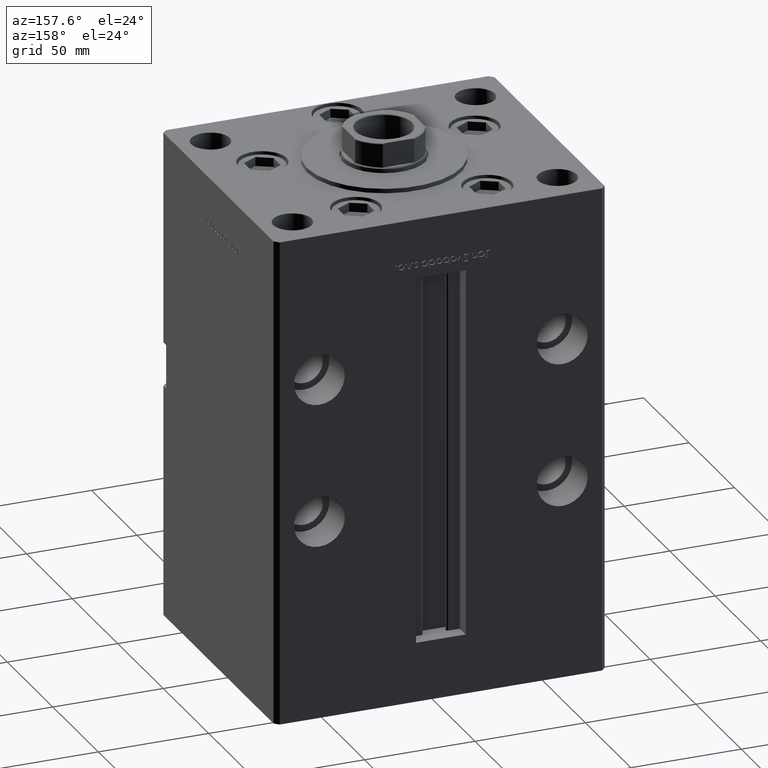
[diagram: clean part render]
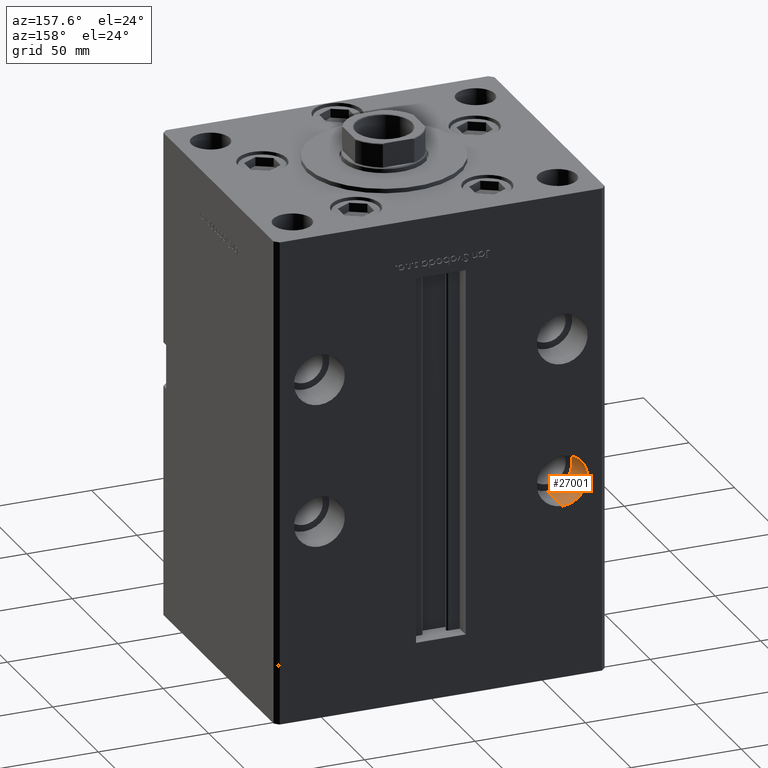
[diagram: same view with one face highlighted and labeled with its STEP entity id]
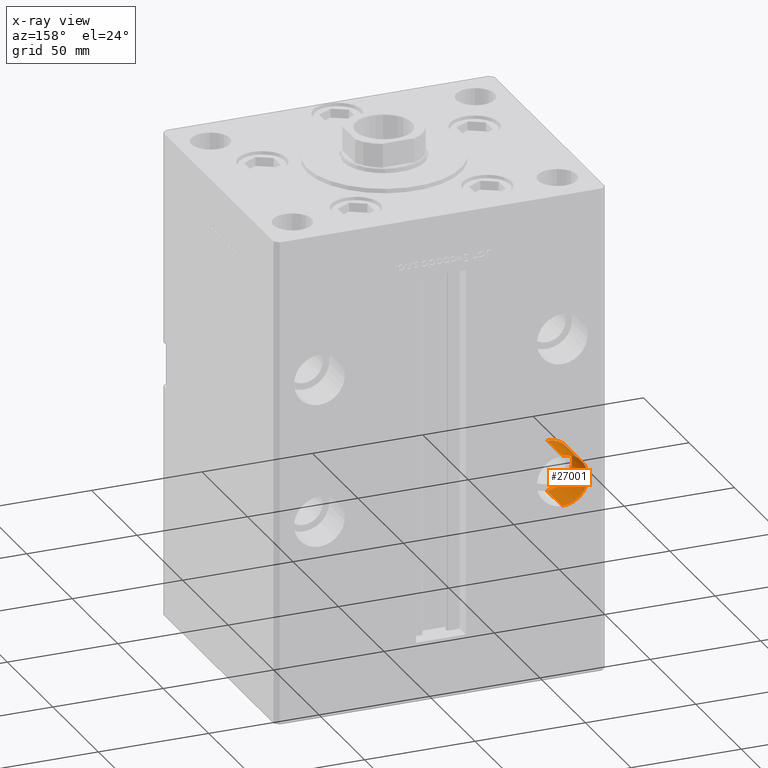
[diagram: x-ray of the same camera — body ghosted, the highlighted face saturated]
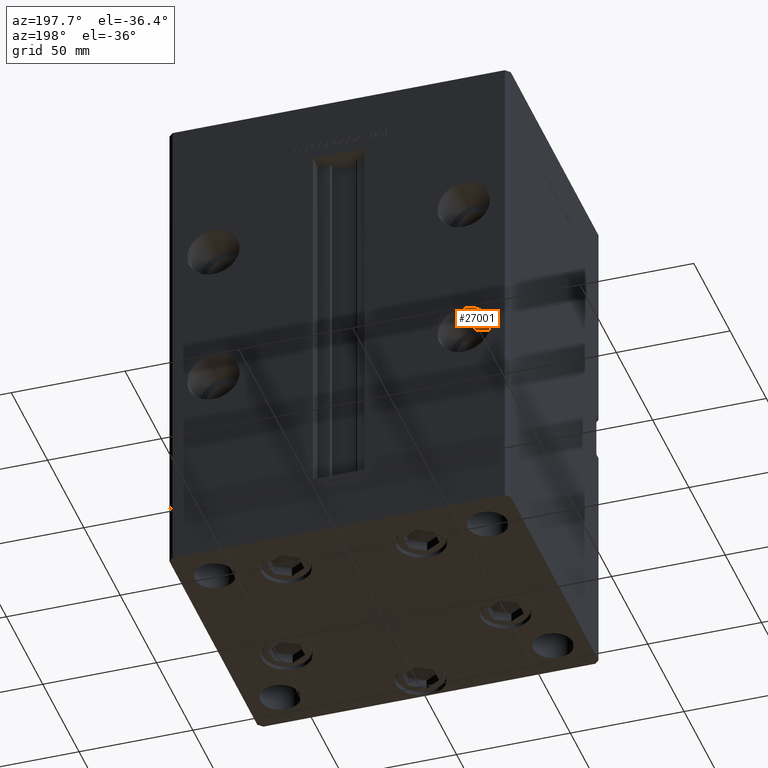
[diagram: same view with one face highlighted and labeled with its STEP entity id]
A machine part, auxiliary view. The second image highlights one B-rep face of the part: STEP entity #27001.
The next image is the same camera in x-ray: the body ghosted, the highlighted face saturated — about 0% of this face is hidden behind the body in this view.
A second angle (auxiliary view) of the same face is appended — the face is thin or edge-on in the first view.
In plain terms, the highlighted cylindrical surface (edge-blend (fillet) strip) has radius 11.5 mm, axis along (0, 1, 0).
Its self-contained STEP definition (entity closure, byte-faithful):
#958 = AXIS2_PLACEMENT_3D ( 'NONE', #34422, #29861, #9230 ) ;
#2023 = CARTESIAN_POINT ( 'NONE',  ( -55.00000000000000000, 62.50000000000000000, 74.50000000000001421 ) ) ;
#3390 = EDGE_LOOP ( 'NONE', ( #21422, #9638, #42960, #34100 ) ) ;
#3591 = CIRCLE ( 'NONE', #35240, 11.50000000000001066 ) ;
#6497 = LINE ( 'NONE', #46713, #37439 ) ;
#7871 = LINE ( 'NONE', #37322, #29064 ) ;
#9230 = DIRECTION ( 'NONE',  ( 0.000000000000000000, 0.000000000000000000, 1.000000000000000000 ) ) ;
#9638 = ORIENTED_EDGE ( 'NONE', *, *, #47589, .T. ) ;
#9736 = DIRECTION ( 'NONE',  ( -0.000000000000000000, 1.000000000000000000, -0.000000000000000000 ) ) ;
#9742 = CARTESIAN_POINT ( 'NONE',  ( -55.00000000000000000, 45.50000000000000000, 74.50000000000001421 ) ) ;
#14442 = VERTEX_POINT ( 'NONE', #45102 ) ;
#14579 = CYLINDRICAL_SURFACE ( 'NONE', #958, 11.50000000000001066 ) ;
#14991 = EDGE_CURVE ( 'NONE', #14442, #40196, #22162, .T. ) ;
#19203 = CARTESIAN_POINT ( 'NONE',  ( -55.00000000000000000, 45.50000000000000000, 63.00000000000000000 ) ) ;
#20434 = DIRECTION ( 'NONE',  ( -0.000000000000000000, 1.000000000000000000, -0.000000000000000000 ) ) ;
#21368 = VERTEX_POINT ( 'NONE', #39543 ) ;
#21422 = ORIENTED_EDGE ( 'NONE', *, *, #14991, .F. ) ;
#22162 = CIRCLE ( 'NONE', #52153, 11.50000000000001066 ) ;
#23378 = EDGE_CURVE ( 'NONE', #21368, #32017, #3591, .T. ) ;
#27001 = ADVANCED_FACE ( 'NONE', ( #34152 ), #14579, .F. ) ;
#29064 = VECTOR ( 'NONE', #20434, 1000.000000000000000 ) ;
#29861 = DIRECTION ( 'NONE',  ( -0.000000000000000000, 1.000000000000000000, -0.000000000000000000 ) ) ;
#32017 = VERTEX_POINT ( 'NONE', #2023 ) ;
#32873 = DIRECTION ( 'NONE',  ( 0.000000000000000000, 0.000000000000000000, 1.000000000000000000 ) ) ;
#34100 = ORIENTED_EDGE ( 'NONE', *, *, #42026, .F. ) ;
#34152 = FACE_OUTER_BOUND ( 'NONE', #3390, .T. ) ;
#34422 = CARTESIAN_POINT ( 'NONE',  ( -55.00000000000000000, 45.50000000000000000, 63.00000000000000000 ) ) ;
#35240 = AXIS2_PLACEMENT_3D ( 'NONE', #49210, #41183, #32873 ) ;
#37322 = CARTESIAN_POINT ( 'NONE',  ( -55.00000000000000000, 45.50000000000000000, 51.50000000000000000 ) ) ;
#37439 = VECTOR ( 'NONE', #9736, 1000.000000000000000 ) ;
#39543 = CARTESIAN_POINT ( 'NONE',  ( -55.00000000000000000, 62.50000000000000000, 51.50000000000000000 ) ) ;
#40196 = VERTEX_POINT ( 'NONE', #9742 ) ;
#41183 = DIRECTION ( 'NONE',  ( 0.000000000000000000, 1.000000000000000000, 0.000000000000000000 ) ) ;
#42026 = EDGE_CURVE ( 'NONE', #40196, #32017, #6497, .T. ) ;
#42960 = ORIENTED_EDGE ( 'NONE', *, *, #23378, .T. ) ;
#43881 = DIRECTION ( 'NONE',  ( 0.000000000000000000, 1.000000000000000000, 0.000000000000000000 ) ) ;
#44410 = DIRECTION ( 'NONE',  ( 0.000000000000000000, 0.000000000000000000, 1.000000000000000000 ) ) ;
#45102 = CARTESIAN_POINT ( 'NONE',  ( -55.00000000000000000, 45.50000000000000000, 51.50000000000000000 ) ) ;
#46713 = CARTESIAN_POINT ( 'NONE',  ( -55.00000000000000000, 45.50000000000000000, 74.50000000000001421 ) ) ;
#47589 = EDGE_CURVE ( 'NONE', #14442, #21368, #7871, .T. ) ;
#49210 = CARTESIAN_POINT ( 'NONE',  ( -55.00000000000000000, 62.50000000000000000, 63.00000000000000000 ) ) ;
#52153 = AXIS2_PLACEMENT_3D ( 'NONE', #19203, #43881, #44410 ) ;